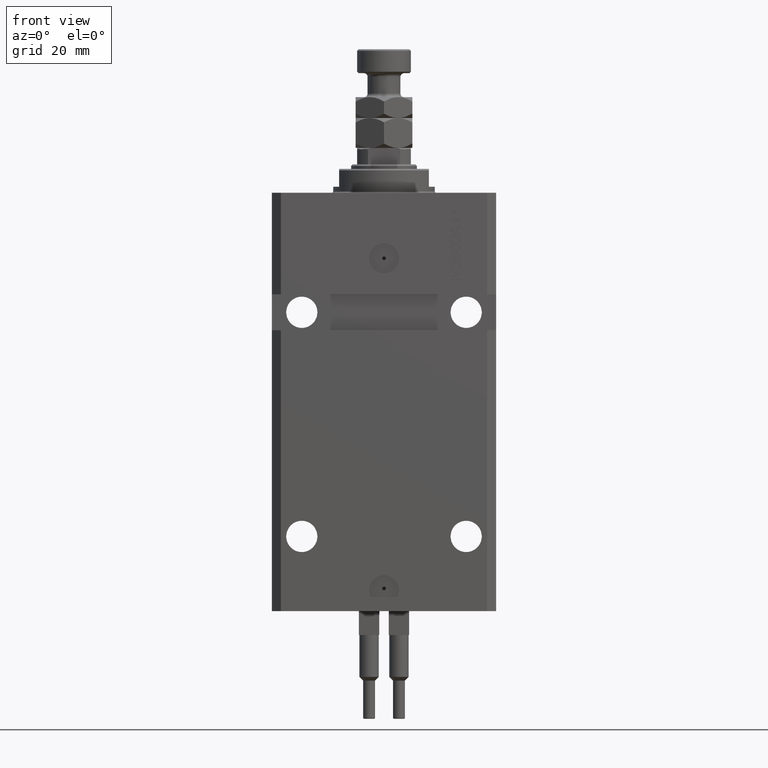
[diagram: clean part render]
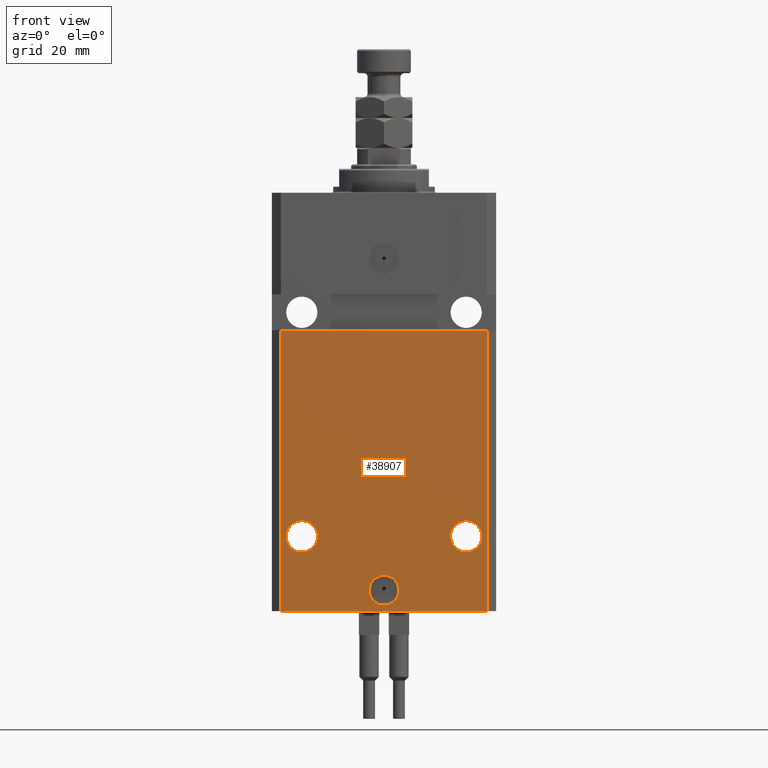
[diagram: same view with one face highlighted and labeled with its STEP entity id]
A machine part, front view. The second image highlights one B-rep face of the part: STEP entity #38907.
In plain terms, the highlighted planar face has unit normal (0, -1, 0).
Its self-contained STEP definition (entity closure, byte-faithful):
#136 = VERTEX_POINT ( 'NONE', #25442 ) ;
#794 = VECTOR ( 'NONE', #35813, 1000.000000000000000 ) ;
#924 = FACE_OUTER_BOUND ( 'NONE', #12816, .T. ) ;
#1031 = AXIS2_PLACEMENT_3D ( 'NONE', #13033, #40276, #28649 ) ;
#1593 = AXIS2_PLACEMENT_3D ( 'NONE', #26440, #8016, #34770 ) ;
#1846 = CARTESIAN_POINT ( 'NONE',  ( -5.000000000000006217, -27.49999999999999645, -133.0000000000000000 ) ) ;
#1937 = DIRECTION ( 'NONE',  ( 1.000000000000000000, 0.000000000000000000, 0.000000000000000000 ) ) ;
#2550 = ORIENTED_EDGE ( 'NONE', *, *, #47385, .F. ) ;
#4335 = LINE ( 'NONE', #42422, #13527 ) ;
#5048 = CARTESIAN_POINT ( 'NONE',  ( -34.49999999999998579, -27.49999999999999645, -140.0000000000000000 ) ) ;
#5283 = VERTEX_POINT ( 'NONE', #13341 ) ;
#5525 = DIRECTION ( 'NONE',  ( 1.176083712526788232E-16, -1.000000000000000000, 0.000000000000000000 ) ) ;
#6916 = DIRECTION ( 'NONE',  ( 1.000000000000000000, 0.000000000000000000, 0.000000000000000000 ) ) ;
#7032 = EDGE_CURVE ( 'NONE', #47325, #5283, #28815, .T. ) ;
#7716 = AXIS2_PLACEMENT_3D ( 'NONE', #21096, #36485, #1937 ) ;
#8016 = DIRECTION ( 'NONE',  ( 1.176083712526788232E-16, -1.000000000000000000, 0.000000000000000000 ) ) ;
#8637 = VECTOR ( 'NONE', #36901, 1000.000000000000000 ) ;
#8810 = DIRECTION ( 'NONE',  ( 1.000000000000000000, 0.000000000000000000, 0.000000000000000000 ) ) ;
#9467 = VERTEX_POINT ( 'NONE', #34398 ) ;
#10446 = CARTESIAN_POINT ( 'NONE',  ( -34.49999999999998579, -27.49999999999999645, -140.0000000000000000 ) ) ;
#10698 = DIRECTION ( 'NONE',  ( 1.176083712526788232E-16, -1.000000000000000000, 0.000000000000000000 ) ) ;
#11510 = EDGE_CURVE ( 'NONE', #5283, #47591, #4335, .T. ) ;
#12586 = CARTESIAN_POINT ( 'NONE',  ( 0.000000000000000000, -27.49999999999999645, -133.0000000000000000 ) ) ;
#12805 = ORIENTED_EDGE ( 'NONE', *, *, #27494, .F. ) ;
#12816 = EDGE_LOOP ( 'NONE', ( #45624, #48499, #20390, #46584 ) ) ;
#13033 = CARTESIAN_POINT ( 'NONE',  ( 27.50000000000001776, -27.49999999999999289, -114.9999999999999858 ) ) ;
#13341 = CARTESIAN_POINT ( 'NONE',  ( 34.49999999999999289, -27.49999999999999645, -140.0000000000000000 ) ) ;
#13527 = VECTOR ( 'NONE', #35106, 1000.000000000000000 ) ;
#13577 = EDGE_CURVE ( 'NONE', #19882, #39301, #25682, .T. ) ;
#15196 = DIRECTION ( 'NONE',  ( -1.000000000000000000, 0.000000000000000000, 0.000000000000000000 ) ) ;
#15552 = EDGE_CURVE ( 'NONE', #47325, #9467, #15892, .T. ) ;
#15892 = LINE ( 'NONE', #5048, #794 ) ;
#16544 = FACE_BOUND ( 'NONE', #20141, .T. ) ;
#16963 = CIRCLE ( 'NONE', #41138, 5.249999999999997335 ) ;
#19785 = AXIS2_PLACEMENT_3D ( 'NONE', #32419, #39497, #20317 ) ;
#19882 = VERTEX_POINT ( 'NONE', #32023 ) ;
#20141 = EDGE_LOOP ( 'NONE', ( #2550, #12805 ) ) ;
#20317 = DIRECTION ( 'NONE',  ( 0.000000000000000000, -0.000000000000000000, -1.000000000000000000 ) ) ;
#20390 = ORIENTED_EDGE ( 'NONE', *, *, #7032, .T. ) ;
#21096 = CARTESIAN_POINT ( 'NONE',  ( 0.000000000000000000, -27.49999999999999645, -133.0000000000000000 ) ) ;
#21193 = CARTESIAN_POINT ( 'NONE',  ( 32.75000000000001421, -27.49999999999999289, -114.9999999999999858 ) ) ;
#22029 = EDGE_CURVE ( 'NONE', #136, #42556, #48266, .T. ) ;
#22440 = CARTESIAN_POINT ( 'NONE',  ( 22.25000000000002132, -27.49999999999999289, -114.9999999999999858 ) ) ;
#24026 = CARTESIAN_POINT ( 'NONE',  ( -37.50000000000000000, -27.50000000000000000, -46.00000000000000000 ) ) ;
#24585 = FACE_BOUND ( 'NONE', #31127, .T. ) ;
#24869 = CARTESIAN_POINT ( 'NONE',  ( -32.75000000000001421, -27.50000000000000000, -114.9999999999999858 ) ) ;
#25227 = ORIENTED_EDGE ( 'NONE', *, *, #43215, .F. ) ;
#25442 = CARTESIAN_POINT ( 'NONE',  ( -22.25000000000002132, -27.50000000000000000, -114.9999999999999858 ) ) ;
#25682 = CIRCLE ( 'NONE', #45020, 5.000000000000006217 ) ;
#26440 = CARTESIAN_POINT ( 'NONE',  ( -27.50000000000001776, -27.50000000000000000, -114.9999999999999858 ) ) ;
#27303 = LINE ( 'NONE', #24026, #30700 ) ;
#27494 = EDGE_CURVE ( 'NONE', #41134, #34952, #30765, .T. ) ;
#28076 = CARTESIAN_POINT ( 'NONE',  ( -34.49999999999998579, -27.49999999999999645, -140.0000000000000000 ) ) ;
#28119 = FACE_BOUND ( 'NONE', #36024, .T. ) ;
#28649 = DIRECTION ( 'NONE',  ( 1.000000000000000000, 0.000000000000000000, 0.000000000000000000 ) ) ;
#28815 = LINE ( 'NONE', #28076, #8637 ) ;
#29366 = ORIENTED_EDGE ( 'NONE', *, *, #42666, .F. ) ;
#30275 = CIRCLE ( 'NONE', #39155, 5.249999999999997335 ) ;
#30571 = CARTESIAN_POINT ( 'NONE',  ( -27.50000000000001776, -27.50000000000000000, -114.9999999999999858 ) ) ;
#30700 = VECTOR ( 'NONE', #39676, 1000.000000000000000 ) ;
#30765 = CIRCLE ( 'NONE', #1031, 5.249999999999997335 ) ;
#31127 = EDGE_LOOP ( 'NONE', ( #38062, #25227 ) ) ;
#32023 = CARTESIAN_POINT ( 'NONE',  ( 5.000000000000006217, -27.49999999999999645, -133.0000000000000000 ) ) ;
#32419 = CARTESIAN_POINT ( 'NONE',  ( -34.49999999999998579, -27.49999999999999645, -140.0000000000000000 ) ) ;
#34091 = CARTESIAN_POINT ( 'NONE',  ( 34.49999999999999289, -27.49999999999999289, -45.99999999999999289 ) ) ;
#34398 = CARTESIAN_POINT ( 'NONE',  ( -34.49999999999998579, -27.50000000000000000, -46.00000000000000000 ) ) ;
#34770 = DIRECTION ( 'NONE',  ( -1.000000000000000000, 0.000000000000000000, 0.000000000000000000 ) ) ;
#34880 = DIRECTION ( 'NONE',  ( 1.176083712526788232E-16, -1.000000000000000000, 0.000000000000000000 ) ) ;
#34952 = VERTEX_POINT ( 'NONE', #21193 ) ;
#35106 = DIRECTION ( 'NONE',  ( 0.000000000000000000, 0.000000000000000000, 1.000000000000000000 ) ) ;
#35813 = DIRECTION ( 'NONE',  ( 0.000000000000000000, 0.000000000000000000, 1.000000000000000000 ) ) ;
#36024 = EDGE_LOOP ( 'NONE', ( #43247, #29366 ) ) ;
#36485 = DIRECTION ( 'NONE',  ( 1.176083712526788232E-16, -1.000000000000000000, 0.000000000000000000 ) ) ;
#36901 = DIRECTION ( 'NONE',  ( 1.000000000000000000, 0.000000000000000000, 0.000000000000000000 ) ) ;
#38062 = ORIENTED_EDGE ( 'NONE', *, *, #22029, .F. ) ;
#38907 = ADVANCED_FACE ( 'NONE', ( #28119, #16544, #24585, #924 ), #47792, .T. ) ;
#39155 = AXIS2_PLACEMENT_3D ( 'NONE', #30571, #34880, #15196 ) ;
#39301 = VERTEX_POINT ( 'NONE', #1846 ) ;
#39497 = DIRECTION ( 'NONE',  ( 0.000000000000000000, -1.000000000000000000, 0.000000000000000000 ) ) ;
#39676 = DIRECTION ( 'NONE',  ( 1.000000000000000000, 9.251858538542972814E-17, 9.251858538542972814E-17 ) ) ;
#40276 = DIRECTION ( 'NONE',  ( 1.176083712526788232E-16, -1.000000000000000000, 0.000000000000000000 ) ) ;
#41134 = VERTEX_POINT ( 'NONE', #22440 ) ;
#41138 = AXIS2_PLACEMENT_3D ( 'NONE', #45241, #10698, #6916 ) ;
#42365 = CIRCLE ( 'NONE', #7716, 5.000000000000006217 ) ;
#42422 = CARTESIAN_POINT ( 'NONE',  ( 34.49999999999999289, -27.49999999999999645, -140.0000000000000000 ) ) ;
#42556 = VERTEX_POINT ( 'NONE', #24869 ) ;
#42666 = EDGE_CURVE ( 'NONE', #39301, #19882, #42365, .T. ) ;
#43215 = EDGE_CURVE ( 'NONE', #42556, #136, #30275, .T. ) ;
#43247 = ORIENTED_EDGE ( 'NONE', *, *, #13577, .F. ) ;
#45020 = AXIS2_PLACEMENT_3D ( 'NONE', #12586, #5525, #8810 ) ;
#45241 = CARTESIAN_POINT ( 'NONE',  ( 27.50000000000001776, -27.49999999999999289, -114.9999999999999858 ) ) ;
#45624 = ORIENTED_EDGE ( 'NONE', *, *, #49805, .F. ) ;
#46584 = ORIENTED_EDGE ( 'NONE', *, *, #11510, .T. ) ;
#47325 = VERTEX_POINT ( 'NONE', #10446 ) ;
#47385 = EDGE_CURVE ( 'NONE', #34952, #41134, #16963, .T. ) ;
#47591 = VERTEX_POINT ( 'NONE', #34091 ) ;
#47792 = PLANE ( 'NONE',  #19785 ) ;
#48266 = CIRCLE ( 'NONE', #1593, 5.249999999999997335 ) ;
#48499 = ORIENTED_EDGE ( 'NONE', *, *, #15552, .F. ) ;
#49805 = EDGE_CURVE ( 'NONE', #9467, #47591, #27303, .T. ) ;